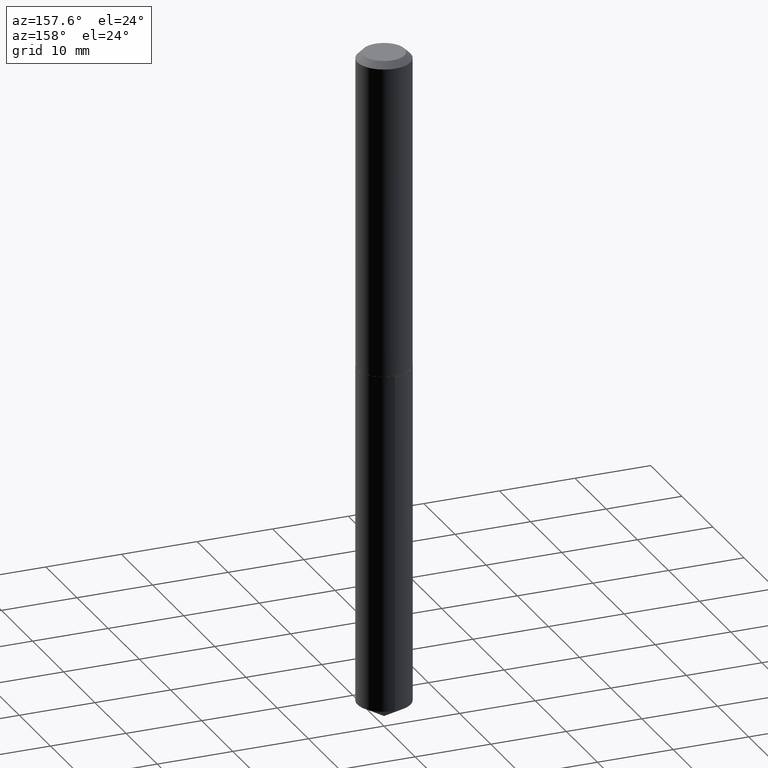
[diagram: clean part render]
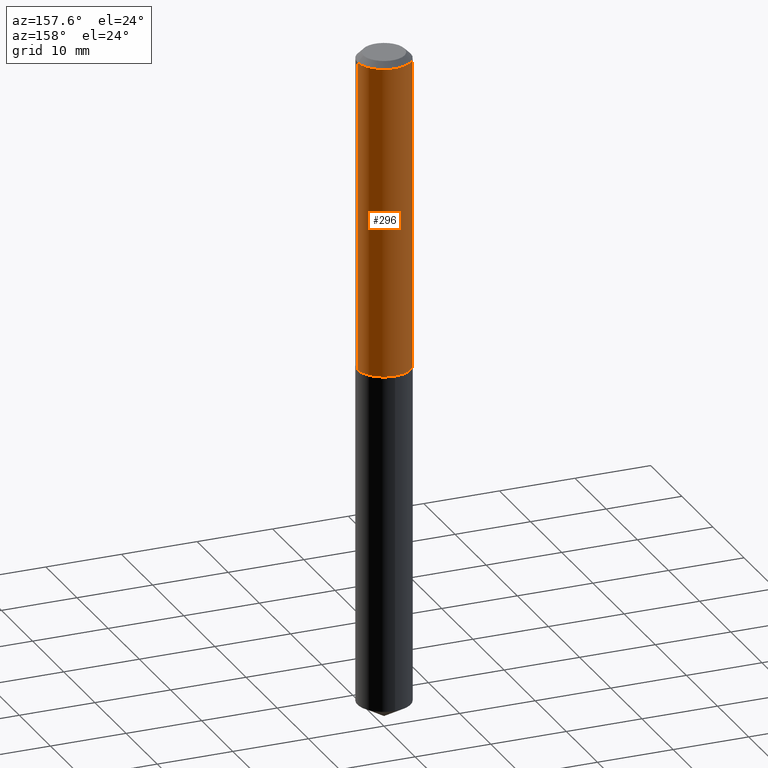
[diagram: same view with one face highlighted and labeled with its STEP entity id]
A machine part, auxiliary view. The second image highlights one B-rep face of the part: STEP entity #296.
In plain terms, the highlighted cylindrical surface (edge-blend (fillet) strip) has radius 3.5179 mm, axis along (-0, 0, 1).
Its self-contained STEP definition (entity closure, byte-faithful):
#1 = DIRECTION ( 'NONE',  ( -2.445468806185136597E-29, 3.491481338843145583E-15, 1.000000000000000000 ) ) ;
#19 = ORIENTED_EDGE ( 'NONE', *, *, #311, .T. ) ;
#80 = AXIS2_PLACEMENT_3D ( 'NONE', #337, #1, #92 ) ;
#83 = VERTEX_POINT ( 'NONE', #143 ) ;
#91 = EDGE_CURVE ( 'NONE', #175, #354, #261, .T. ) ;
#92 = DIRECTION ( 'NONE',  ( 1.000000000000000000, -6.982962677686267499E-15, 4.876176775795935793E-29 ) ) ;
#97 = DIRECTION ( 'NONE',  ( -2.445468806185136597E-29, 3.491481338843145583E-15, 1.000000000000000000 ) ) ;
#104 = VERTEX_POINT ( 'NONE', #264 ) ;
#107 = VECTOR ( 'NONE', #131, 39.37007874015748143 ) ;
#110 = DIRECTION ( 'NONE',  ( -2.445468806185136877E-29, 3.491481338843145188E-15, 1.000000000000000000 ) ) ;
#131 = DIRECTION ( 'NONE',  ( -2.445468806185136877E-29, 3.491481338843145188E-15, 1.000000000000000000 ) ) ;
#142 = EDGE_LOOP ( 'NONE', ( #19, #313, #220, #308 ) ) ;
#143 = CARTESIAN_POINT ( 'NONE',  ( 0.1385000000000000120, -1.076249122698396985E-15, -0.03125000000000021511 ) ) ;
#157 = DIRECTION ( 'NONE',  ( 1.000000000000000000, -6.982962677686267499E-15, 0.000000000000000000 ) ) ;
#161 = DIRECTION ( 'NONE',  ( 1.000000000000000000, -6.982962677686269866E-15, 0.000000000000000000 ) ) ;
#175 = VERTEX_POINT ( 'NONE', #241 ) ;
#188 = CYLINDRICAL_SURFACE ( 'NONE', #80, 0.1385000000000000953 ) ;
#220 = ORIENTED_EDGE ( 'NONE', *, *, #275, .F. ) ;
#238 = CARTESIAN_POINT ( 'NONE',  ( 7.642090019328604414E-31, -1.091087918388490513E-16, -0.03125000000000021511 ) ) ;
#241 = CARTESIAN_POINT ( 'NONE',  ( -0.1385000000000002063, -4.782079742071715820E-15, -1.651500000000000190 ) ) ;
#242 = LINE ( 'NONE', #247, #107 ) ;
#247 = CARTESIAN_POINT ( 'NONE',  ( 0.1385000000000000953, -9.671403308595486731E-16, 6.753504834477375725E-30 ) ) ;
#257 = VECTOR ( 'NONE', #110, 39.37007874015748143 ) ;
#261 = LINE ( 'NONE', #375, #257 ) ;
#264 = CARTESIAN_POINT ( 'NONE',  ( 0.1385000000000002063, -6.733321761959005111E-15, -1.651500000000000190 ) ) ;
#271 = CIRCLE ( 'NONE', #332, 0.1385000000000002063 ) ;
#275 = EDGE_CURVE ( 'NONE', #83, #354, #380, .T. ) ;
#296 = ADVANCED_FACE ( 'NONE', ( #390 ), #188, .T. ) ;
#308 = ORIENTED_EDGE ( 'NONE', *, *, #340, .F. ) ;
#311 = EDGE_CURVE ( 'NONE', #104, #175, #271, .T. ) ;
#313 = ORIENTED_EDGE ( 'NONE', *, *, #91, .T. ) ;
#320 = AXIS2_PLACEMENT_3D ( 'NONE', #238, #323, #157 ) ;
#323 = DIRECTION ( 'NONE',  ( -2.445468806185136597E-29, 3.491481338843145583E-15, 1.000000000000000000 ) ) ;
#326 = CARTESIAN_POINT ( 'NONE',  ( 4.038691733414753677E-29, -5.766181431099455846E-15, -1.651500000000000190 ) ) ;
#332 = AXIS2_PLACEMENT_3D ( 'NONE', #326, #97, #161 ) ;
#337 = CARTESIAN_POINT ( 'NONE',  ( 0.000000000000000000, 0.000000000000000000, 0.000000000000000000 ) ) ;
#340 = EDGE_CURVE ( 'NONE', #104, #83, #242, .T. ) ;
#354 = VERTEX_POINT ( 'NONE', #361 ) ;
#361 = CARTESIAN_POINT ( 'NONE',  ( -0.1385000000000000120, -1.953543422441412053E-15, -0.03125000000000021511 ) ) ;
#375 = CARTESIAN_POINT ( 'NONE',  ( -0.1385000000000000953, 9.841016890277394343E-16, -6.812725100003049365E-30 ) ) ;
#380 = CIRCLE ( 'NONE', #320, 0.1385000000000000120 ) ;
#390 = FACE_OUTER_BOUND ( 'NONE', #142, .T. ) ;